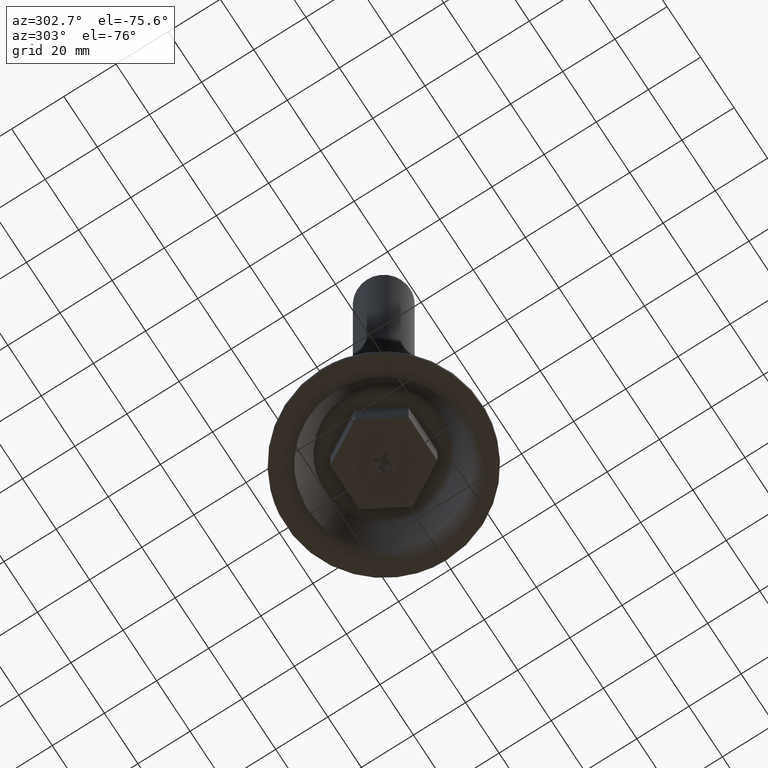
[diagram: clean part render]
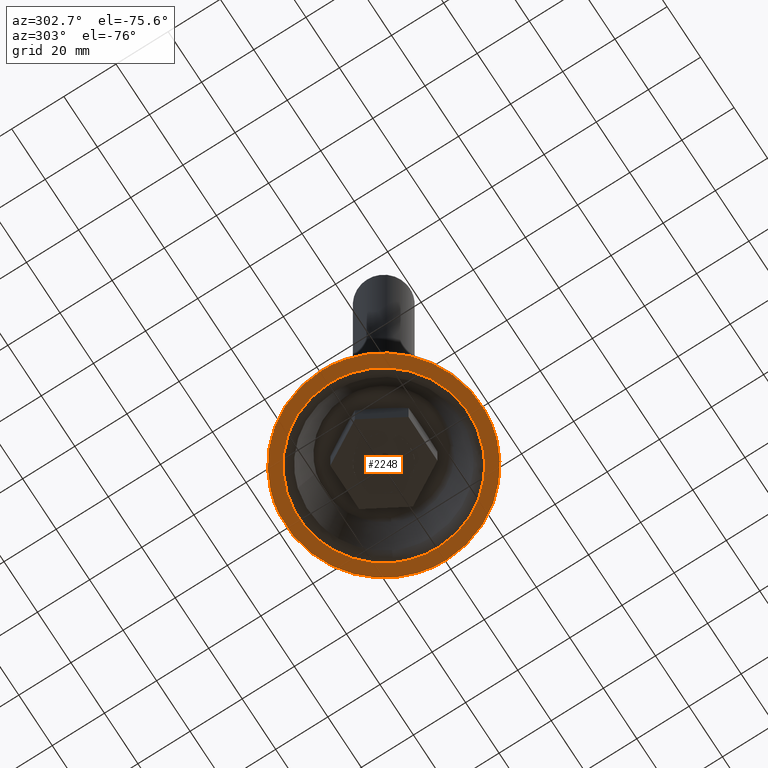
[diagram: same view with one face highlighted and labeled with its STEP entity id]
A machine part, auxiliary view. The second image highlights one B-rep face of the part: STEP entity #2248.
In plain terms, the highlighted face is a freeform B-spline surface patch.
Its self-contained STEP definition (entity closure, byte-faithful):
#1173=CARTESIAN_POINT('',(-4.426273078077650,37.237858513053190,-6.278615E-013));
#1174=VERTEX_POINT('',#1173);
#1175=CARTESIAN_POINT('',(37.500000000000000,0.0,0.0));
#1176=VERTEX_POINT('',#1175);
#1177=CARTESIAN_POINT('',(-4.426273078077650,37.237858513053197,-6.278615E-013));
#1178=CARTESIAN_POINT('',(-2.220899069498029,37.500000000000000,0.0));
#1179=CARTESIAN_POINT('',(0.0,37.500000000000000,0.0));
#1180=CARTESIAN_POINT('',(37.500000000000000,37.500000000000000,0.0));
#1181=CARTESIAN_POINT('',(37.500000000000000,0.0,0.0));
#1189=(BOUNDED_CURVE()B_SPLINE_CURVE(2,(#1177,#1178,#1179,#1180,#1181),.UNSPECIFIED.,.F.,.U.)B_SPLINE_CURVE_WITH_KNOTS((3,2,3),(0.229562522175183,0.250000000000000,0.500000000000000),.UNSPECIFIED.)CURVE()GEOMETRIC_REPRESENTATION_ITEM()RATIONAL_B_SPLINE_CURVE((0.956026849562595,0.976056005341843,1.0,0.707106781186547,1.0))REPRESENTATION_ITEM(''));
#1190=EDGE_CURVE('',#1174,#1176,#1189,.T.);
#1231=CARTESIAN_POINT('',(2.289267736507803,-37.430058151542028,6.414105E-012));
#1232=VERTEX_POINT('',#1231);
#1238=CARTESIAN_POINT('',(37.500000000000000,0.0,0.0));
#1239=CARTESIAN_POINT('',(37.500000000000014,-35.276527077080601,0.0));
#1240=CARTESIAN_POINT('',(2.289267736507803,-37.430058151542028,6.414105E-012));
#1248=(BOUNDED_CURVE()B_SPLINE_CURVE(2,(#1238,#1239,#1240),.UNSPECIFIED.,.F.,.U.)B_SPLINE_CURVE_WITH_KNOTS((3,3),(0.500000000000000,0.739333204240716),.UNSPECIFIED.)CURVE()GEOMETRIC_REPRESENTATION_ITEM()RATIONAL_B_SPLINE_CURVE((1.0,0.719603709763997,0.976072560323133))REPRESENTATION_ITEM(''));
#1249=EDGE_CURVE('',#1176,#1232,#1248,.T.);
#1272=CARTESIAN_POINT('',(-37.500000000000000,0.0,0.0));
#1273=VERTEX_POINT('',#1272);
#1274=CARTESIAN_POINT('',(-37.500000000000000,0.0,0.0));
#1275=CARTESIAN_POINT('',(-37.500000000000007,33.306554380329715,0.0));
#1276=CARTESIAN_POINT('',(-4.426273078077650,37.237858513053197,-6.278615E-013));
#1284=(BOUNDED_CURVE()B_SPLINE_CURVE(2,(#1274,#1275,#1276),.UNSPECIFIED.,.F.,.U.)B_SPLINE_CURVE_WITH_KNOTS((3,3),(0.0,0.229562522175183),.UNSPECIFIED.)CURVE()GEOMETRIC_REPRESENTATION_ITEM()RATIONAL_B_SPLINE_CURVE((1.0,0.731050775844704,0.956026849562595))REPRESENTATION_ITEM(''));
#1285=EDGE_CURVE('',#1273,#1174,#1284,.T.);
#1287=CARTESIAN_POINT('',(2.289267736507803,-37.430058151542028,6.414105E-012));
#1288=CARTESIAN_POINT('',(1.145702302078333,-37.500000000000007,0.0));
#1289=CARTESIAN_POINT('',(0.0,-37.500000000000000,0.0));
#1290=CARTESIAN_POINT('',(-37.500000000000000,-37.500000000000000,0.0));
#1291=CARTESIAN_POINT('',(-37.500000000000000,0.0,0.0));
#1299=(BOUNDED_CURVE()B_SPLINE_CURVE(2,(#1287,#1288,#1289,#1290,#1291),.UNSPECIFIED.,.F.,.U.)B_SPLINE_CURVE_WITH_KNOTS((3,2,3),(0.739333204240716,0.750000000000000,1.0),.UNSPECIFIED.)CURVE()GEOMETRIC_REPRESENTATION_ITEM()RATIONAL_B_SPLINE_CURVE((0.976072560323133,0.987503071422551,1.0,0.707106781186547,1.0))REPRESENTATION_ITEM(''));
#1300=EDGE_CURVE('',#1232,#1273,#1299,.T.);
#1763=CARTESIAN_POINT('',(13.274496829089260,-29.701465753989400,6.272560E-016));
#1764=VERTEX_POINT('',#1763);
#1778=CARTESIAN_POINT('',(-32.532896183340213,0.0,0.0));
#1779=VERTEX_POINT('',#1778);
#1780=CARTESIAN_POINT('',(13.274496829089262,-29.701465753989400,6.272560E-016));
#1781=CARTESIAN_POINT('',(6.939218364182151,-32.532896183340206,0.0));
#1782=CARTESIAN_POINT('',(0.0,-32.532896183340213,0.0));
#1783=CARTESIAN_POINT('',(-32.532896183340213,-32.532896183340213,0.0));
#1784=CARTESIAN_POINT('',(-32.532896183340213,0.0,0.0));
#1792=(BOUNDED_CURVE()B_SPLINE_CURVE(2,(#1780,#1781,#1782,#1783,#1784),.UNSPECIFIED.,.F.,.U.)B_SPLINE_CURVE_WITH_KNOTS((3,2,3),(0.680709483576861,0.750000000000000,1.0),.UNSPECIFIED.)CURVE()GEOMETRIC_REPRESENTATION_ITEM()RATIONAL_B_SPLINE_CURVE((0.882641638331295,0.918821110446322,1.0,0.707106781186547,1.0))REPRESENTATION_ITEM(''));
#1793=EDGE_CURVE('',#1764,#1779,#1792,.T.);
#1795=CARTESIAN_POINT('',(28.893650884553431,14.951463892994591,6.131464E-016));
#1796=VERTEX_POINT('',#1795);
#1797=CARTESIAN_POINT('',(-32.532896183340213,0.0,0.0));
#1798=CARTESIAN_POINT('',(-32.532896183340213,32.532896183340213,0.0));
#1799=CARTESIAN_POINT('',(0.0,32.532896183340213,0.0));
#1800=CARTESIAN_POINT('',(19.795868431173304,32.532896183340206,0.0));
#1801=CARTESIAN_POINT('',(28.893650884553434,14.951463892994592,6.131464E-016));
#1809=(BOUNDED_CURVE()B_SPLINE_CURVE(2,(#1797,#1798,#1799,#1800,#1801),.UNSPECIFIED.,.F.,.U.)B_SPLINE_CURVE_WITH_KNOTS((3,2,3),(0.0,0.250000000000000,0.421825371002056),.UNSPECIFIED.)CURVE()GEOMETRIC_REPRESENTATION_ITEM()RATIONAL_B_SPLINE_CURVE((1.0,0.707106781186547,1.0,0.798694056053569,0.874103860135254))REPRESENTATION_ITEM(''));
#1810=EDGE_CURVE('',#1779,#1796,#1809,.T.);
#1857=CARTESIAN_POINT('',(32.532896183340213,0.0,0.0));
#1858=VERTEX_POINT('',#1857);
#1859=CARTESIAN_POINT('',(28.893650884553431,14.951463892994587,6.131464E-016));
#1860=CARTESIAN_POINT('',(32.532896183340206,7.918635278285223,0.0));
#1861=CARTESIAN_POINT('',(32.532896183340213,0.0,0.0));
#1869=(BOUNDED_CURVE()B_SPLINE_CURVE(2,(#1859,#1860,#1861),.UNSPECIFIED.,.F.,.U.)B_SPLINE_CURVE_WITH_KNOTS((3,3),(0.421825371002055,0.500000000000000),.UNSPECIFIED.)CURVE()GEOMETRIC_REPRESENTATION_ITEM()RATIONAL_B_SPLINE_CURVE((0.874103860135254,0.908412725132978,1.0))REPRESENTATION_ITEM(''));
#1870=EDGE_CURVE('',#1796,#1858,#1869,.T.);
#1872=CARTESIAN_POINT('',(32.532896183340213,0.0,0.0));
#1873=CARTESIAN_POINT('',(32.532896183340206,-21.094295884201447,0.0));
#1874=CARTESIAN_POINT('',(13.274496829089255,-29.701465753989392,6.272560E-016));
#1882=(BOUNDED_CURVE()B_SPLINE_CURVE(2,(#1872,#1873,#1874),.UNSPECIFIED.,.F.,.U.)B_SPLINE_CURVE_WITH_KNOTS((3,3),(0.500000000000000,0.680709483576862),.UNSPECIFIED.)CURVE()GEOMETRIC_REPRESENTATION_ITEM()RATIONAL_B_SPLINE_CURVE((1.0,0.788285670740225,0.882641638331295))REPRESENTATION_ITEM(''));
#1883=EDGE_CURVE('',#1858,#1764,#1882,.T.);
#2231=CARTESIAN_POINT('',(41.246249854635451,-41.245338546059941,0.0));
#2232=CARTESIAN_POINT('',(-41.246251866292212,-41.245338546059941,0.0));
#2233=CARTESIAN_POINT('',(41.246249854635451,41.245567874930707,0.0));
#2234=CARTESIAN_POINT('',(-41.246251866292212,41.245567874930707,0.0));
#2235=B_SPLINE_SURFACE_WITH_KNOTS('',1,1,((#2231,#2233),(#2232,#2234)),.UNSPECIFIED.,.F.,.F.,.U.,(2,2),(2,2),(0.0,82.492501720927663),(0.0,82.490906420990655),.UNSPECIFIED.);
#2236=ORIENTED_EDGE('',*,*,#1285,.T.);
#2237=ORIENTED_EDGE('',*,*,#1190,.T.);
#2238=ORIENTED_EDGE('',*,*,#1249,.T.);
#2239=ORIENTED_EDGE('',*,*,#1300,.T.);
#2240=EDGE_LOOP('',(#2236,#2237,#2238,#2239));
#2241=FACE_OUTER_BOUND('',#2240,.T.);
#2242=ORIENTED_EDGE('',*,*,#1810,.F.);
#2243=ORIENTED_EDGE('',*,*,#1793,.F.);
#2244=ORIENTED_EDGE('',*,*,#1883,.F.);
#2245=ORIENTED_EDGE('',*,*,#1870,.F.);
#2246=EDGE_LOOP('',(#2242,#2243,#2244,#2245));
#2247=FACE_BOUND('',#2246,.T.);
#2248=ADVANCED_FACE('',(#2241,#2247),#2235,.T.);